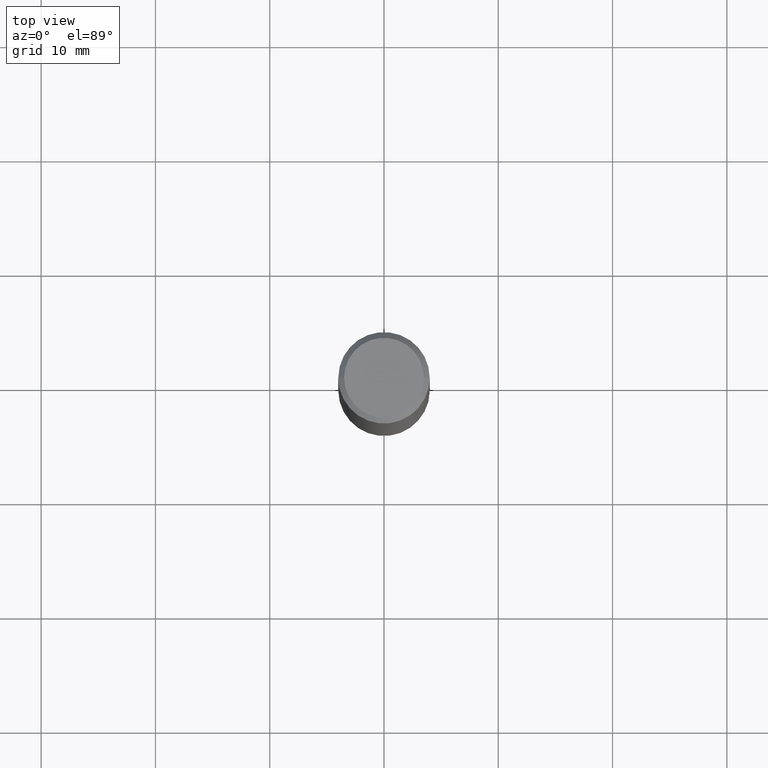
[diagram: clean part render]
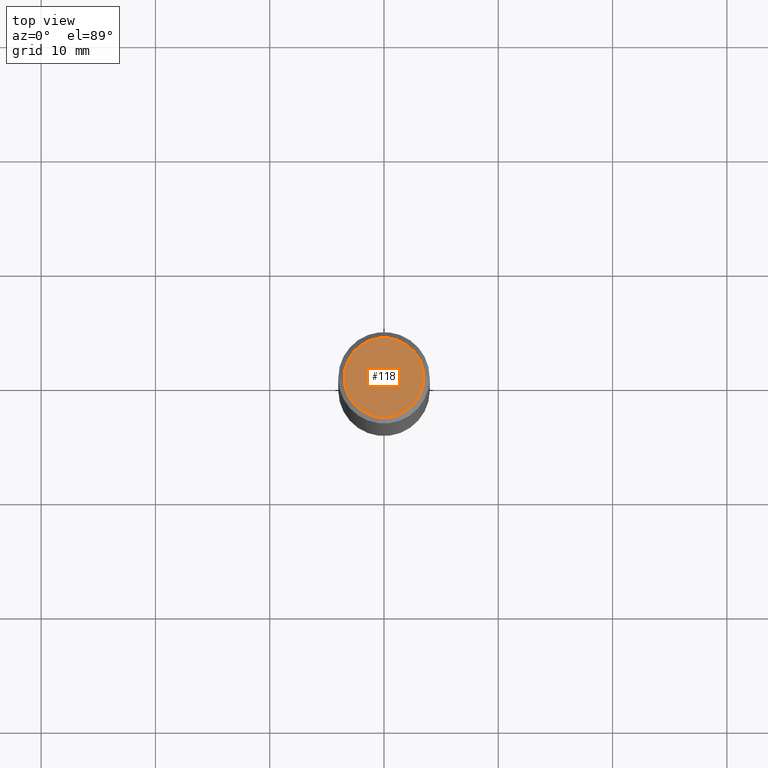
[diagram: same view with one face highlighted and labeled with its STEP entity id]
A machine part, top view. The second image highlights one B-rep face of the part: STEP entity #118.
In plain terms, the highlighted planar face has unit normal (0, -0, -1).
Its self-contained STEP definition (entity closure, byte-faithful):
#41 = DIRECTION ( 'NONE',  ( -2.445468806185136597E-29, 3.491481338843145583E-15, 1.000000000000000000 ) ) ;
#44 = DIRECTION ( 'NONE',  ( -1.000000000000000000, 6.982962677686265922E-15, -4.876176775795935793E-29 ) ) ;
#75 = PLANE ( 'NONE',  #166 ) ;
#86 = EDGE_CURVE ( 'NONE', #120, #175, #285, .T. ) ;
#97 = EDGE_LOOP ( 'NONE', ( #332, #222 ) ) ;
#118 = ADVANCED_FACE ( 'NONE', ( #243 ), #75, .F. ) ;
#120 = VERTEX_POINT ( 'NONE', #161 ) ;
#158 = AXIS2_PLACEMENT_3D ( 'NONE', #214, #41, #342 ) ;
#161 = CARTESIAN_POINT ( 'NONE',  ( -0.1374999999999998446, 9.950721815702915469E-16, 4.268512490093574228E-18 ) ) ;
#166 = AXIS2_PLACEMENT_3D ( 'NONE', #191, #341, #44 ) ;
#175 = VERTEX_POINT ( 'NONE', #303 ) ;
#191 = CARTESIAN_POINT ( 'NONE',  ( 9.601573681818602922E-16, 0.1374999999999998446, -4.779444278458817077E-16 ) ) ;
#213 = AXIS2_PLACEMENT_3D ( 'NONE', #272, #330, #224 ) ;
#214 = CARTESIAN_POINT ( 'NONE',  ( -1.043851414335219820E-46, 1.490343170380447200E-32, 4.268512490100411279E-18 ) ) ;
#222 = ORIENTED_EDGE ( 'NONE', *, *, #266, .T. ) ;
#224 = DIRECTION ( 'NONE',  ( 1.000000000000000000, -6.982962677686265922E-15, 4.876173381029105647E-29 ) ) ;
#230 = CIRCLE ( 'NONE', #213, 0.1374999999999998446 ) ;
#243 = FACE_OUTER_BOUND ( 'NONE', #97, .T. ) ;
#266 = EDGE_CURVE ( 'NONE', #175, #120, #230, .T. ) ;
#272 = CARTESIAN_POINT ( 'NONE',  ( -1.043851414335219820E-46, 1.490343170380447200E-32, 4.268512490100411279E-18 ) ) ;
#285 = CIRCLE ( 'NONE', #158, 0.1374999999999998446 ) ;
#303 = CARTESIAN_POINT ( 'NONE',  ( 0.1374999999999998446, -1.046838268059731308E-15, 4.268512490107428597E-18 ) ) ;
#330 = DIRECTION ( 'NONE',  ( -2.445468806185136597E-29, 3.491481338843145583E-15, 1.000000000000000000 ) ) ;
#332 = ORIENTED_EDGE ( 'NONE', *, *, #86, .T. ) ;
#341 = DIRECTION ( 'NONE',  ( 2.438088387897960049E-29, -3.491481338843145188E-15, -1.000000000000000000 ) ) ;
#342 = DIRECTION ( 'NONE',  ( 1.000000000000000000, -6.982962677686265922E-15, 4.876173381029105647E-29 ) ) ;